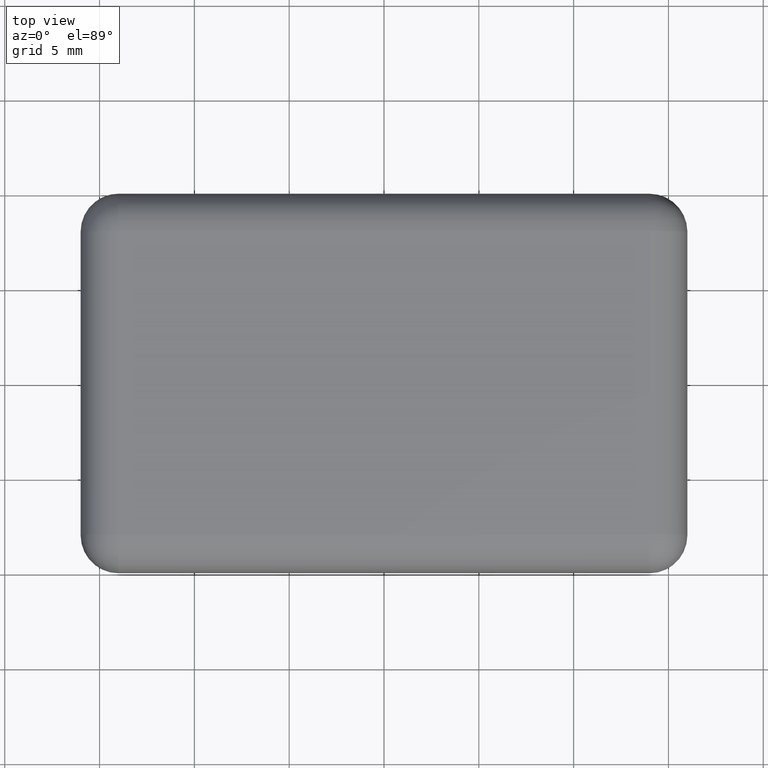
[diagram: clean part render]
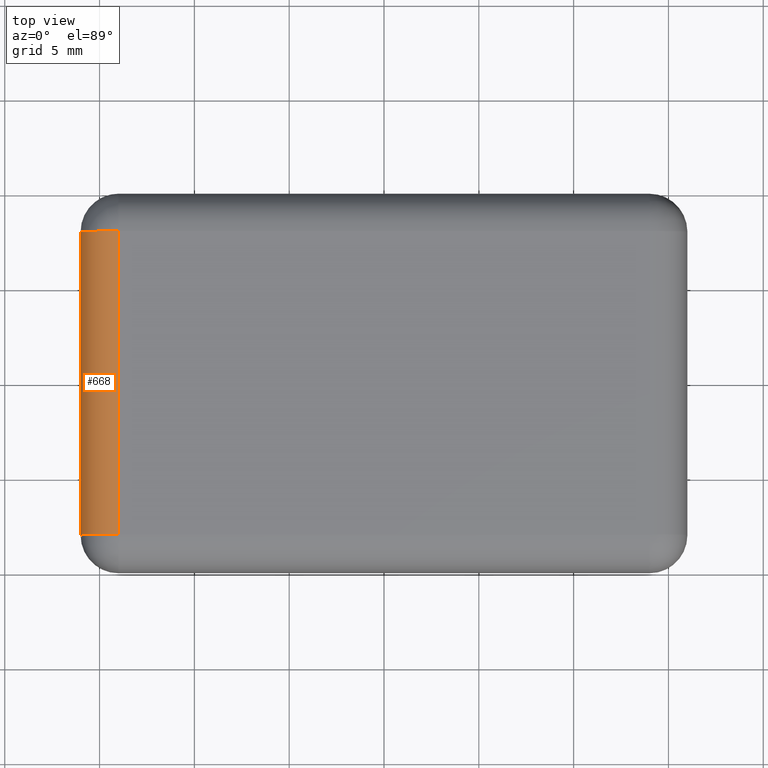
[diagram: same view with one face highlighted and labeled with its STEP entity id]
A machine part, top view. The second image highlights one B-rep face of the part: STEP entity #668.
In plain terms, the highlighted cylindrical surface (partial cylindrical patch) has radius 2 mm, axis along (0, -1, 0).
Its self-contained STEP definition (entity closure, byte-faithful):
#88=FACE_OUTER_BOUND('',#128,.T.);
#128=EDGE_LOOP('',(#573,#574,#575,#576));
#146=LINE('',#990,#198);
#183=LINE('',#1160,#235);
#198=VECTOR('',#784,16.);
#235=VECTOR('',#941,16.);
#267=CIRCLE('',#729,2.);
#273=CIRCLE('',#740,2.);
#285=VERTEX_POINT('',#986);
#287=VERTEX_POINT('',#989);
#326=VERTEX_POINT('',#1122);
#333=VERTEX_POINT('',#1146);
#350=EDGE_CURVE('',#287,#285,#146,.T.);
#409=EDGE_CURVE('',#285,#326,#267,.F.);
#420=EDGE_CURVE('',#333,#287,#273,.F.);
#427=EDGE_CURVE('',#326,#333,#183,.T.);
#573=ORIENTED_EDGE('',*,*,#420,.T.);
#574=ORIENTED_EDGE('',*,*,#350,.T.);
#575=ORIENTED_EDGE('',*,*,#409,.T.);
#576=ORIENTED_EDGE('',*,*,#427,.T.);
#633=CYLINDRICAL_SURFACE('',#746,2.);
#668=ADVANCED_FACE('',(#88),#633,.T.);
#729=AXIS2_PLACEMENT_3D('',#1124,#897,#898);
#740=AXIS2_PLACEMENT_3D('',#1147,#924,#925);
#746=AXIS2_PLACEMENT_3D('',#1159,#939,#940);
#784=DIRECTION('',(0.,1.,0.));
#897=DIRECTION('center_axis',(0.,1.,0.));
#898=DIRECTION('ref_axis',(0.,0.,1.));
#924=DIRECTION('center_axis',(0.,-1.,0.));
#925=DIRECTION('ref_axis',(-1.,0.,0.));
#939=DIRECTION('center_axis',(0.,-1.,0.));
#940=DIRECTION('ref_axis',(-0.707106781186547,0.,0.707106781186548));
#941=DIRECTION('',(0.,-1.,0.));
#986=CARTESIAN_POINT('',(-14.,8.00000000000003,3.));
#989=CARTESIAN_POINT('',(-14.,-7.99999999999996,3.));
#990=CARTESIAN_POINT('',(-14.,5.00000000000003,3.));
#1122=CARTESIAN_POINT('',(-16.,8.00000000000003,1.));
#1124=CARTESIAN_POINT('Origin',(-14.,8.00000000000003,1.));
#1146=CARTESIAN_POINT('',(-16.,-7.99999999999996,1.));
#1147=CARTESIAN_POINT('Origin',(-14.,-7.99999999999996,1.));
#1159=CARTESIAN_POINT('Origin',(-14.,5.00000000000003,1.));
#1160=CARTESIAN_POINT('',(-16.,5.00000000000003,1.));